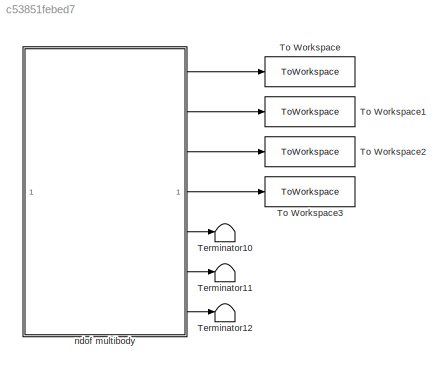
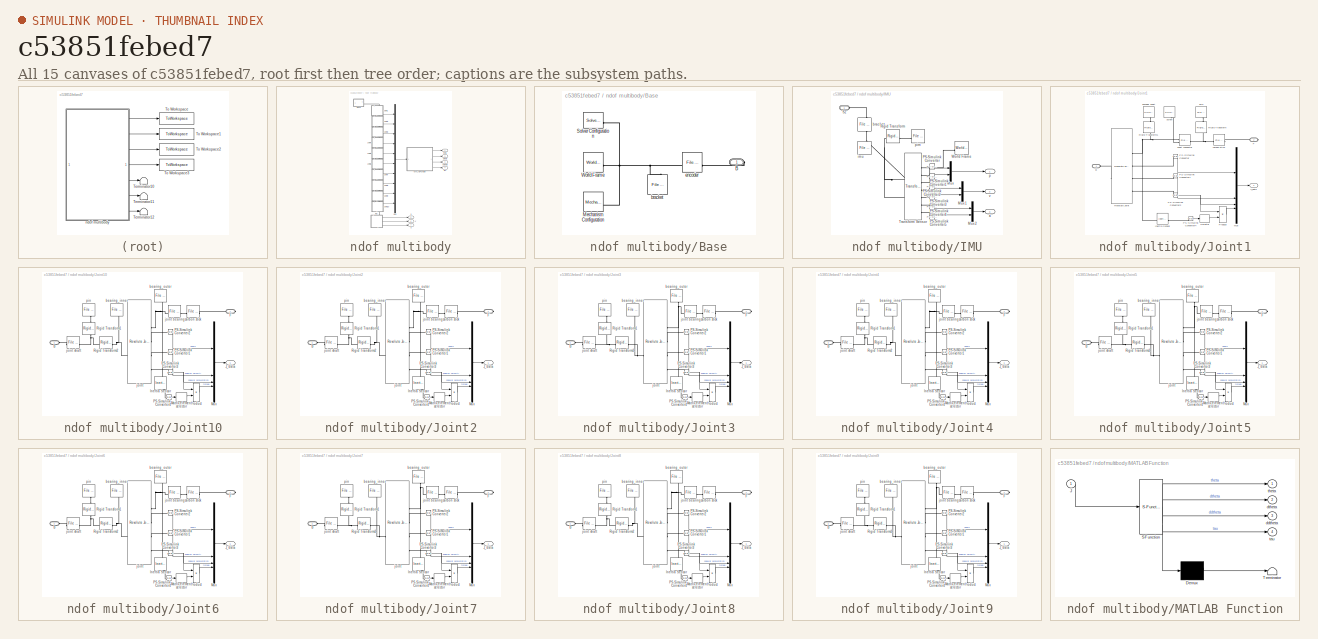
[diagram: thumbnail index - all 15 canvases of the model, root first then tree order]
MODEL slx_c53851febed7
KIND model
CONFIG AbsTol = 1e-3
CONFIG EnableMultiTasking = on
CONFIG FixedStep = auto
CONFIG MaxStep = 1/120
CONFIG MinStep = auto
CONFIG RelTol = 1e-3
CONFIG SampleTimeConstraint = Unconstrained
CONFIG SolverName = VariableStepAuto
CONFIG StartTime = 0.0
CONFIG StopTime = 10.0
WORKSPACE source: mxarray member
WORKSPACE multidof_model_spesession: sldodialogs.data.SessionData (value not decoded)
WORKSPACE multidof_model_spesession_inits: sldodialogs.data.SessionData (value not decoded)
BLOCK [Terminator] Terminator10
BLOCK [Terminator] Terminator11
BLOCK [Terminator] Terminator12
BLOCK [ToWorkspace] To Workspace
  FixptAsFi = on
  MaxDataPoints = inf
  SampleTime = 0.01
  VariableName = th_sim
BLOCK [ToWorkspace] To Workspace1
  FixptAsFi = on
  MaxDataPoints = inf
  SampleTime = 0.01
  VariableName = dth_sim
BLOCK [ToWorkspace] To Workspace2
  FixptAsFi = on
  MaxDataPoints = inf
  SampleTime = 0.01
  VariableName = ddth_sim
BLOCK [ToWorkspace] To Workspace3
  FixptAsFi = on
  MaxDataPoints = inf
  SampleTime = 0.01
  VariableName = tau_sim
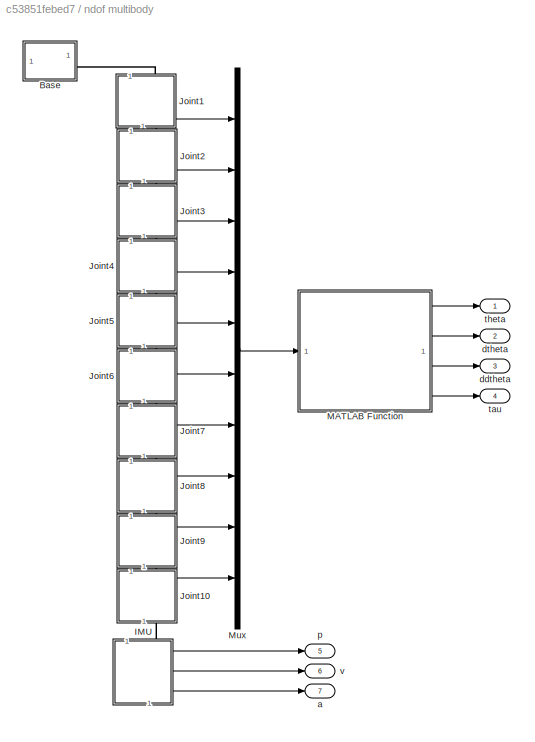
BLOCK [SubSystem] ndof multibody
BLOCK [SubSystem] ndof multibody/Base
BLOCK [PMIOPort] ndof multibody/Base/B
  Side = Right
BLOCK [Reference] ndof multibody/Base/Mechanism Configuration  REF=sm_lib/Utilities/Mechanism
Configuration
  SourceBlock = sm_lib/Utilities/Mechanism\nConfiguration
  SourceType = Mechanism\nConfiguration
BLOCK [Reference] ndof multibody/Base/Solver Configuration  REF=nesl_utility/Solver
Configuration
  SourceBlock = nesl_utility/Solver\nConfiguration
  SourceType = Solver\nConfiguration
BLOCK [Reference] ndof multibody/Base/World Frame  REF=sm_lib/Frames and
Transforms/World Frame
  SourceBlock = sm_lib/Frames and\nTransforms/World Frame
  SourceType = World Frame
BLOCK [Reference] ndof multibody/Base/bracket  REF=sm_lib/Body Elements/File Solid
  SourceBlock = sm_lib/Body Elements/File Solid
  SourceType = File Solid
BLOCK [Reference] ndof multibody/Base/encoder  REF=sm_lib/Body Elements/File Solid
  SourceBlock = sm_lib/Body Elements/File Solid
  SourceType = File Solid
BLOCK [SubSystem] ndof multibody/IMU
  NameLocation = left
  PortSchema = {"entries":[{"content":{"sides":[{"content":{"connectorIds":["LConn1"]},"type":"ConnectorPlacement.EquallySpacedRectSide","uuid":"e53e4473-ec9e-4a7f-8a70-532d57d23812"},{"content":{"side":"RIGHT"},"type":"ConnectorPlacement.EquallySpacedRectSide","uuid":"3b013098-414b-4bbe-8fb9-8feaf218f2f2"},{"content":{"side":"TOP"},"type":"ConnectorPlacement.EquallySpacedRectSide","uuid":"7a3e6378-27ed-48b3-ae8...<+365ch>
BLOCK [Mux] ndof multibody/IMU/Mux
  DisplayOption = bar
  Inputs = 2
BLOCK [Mux] ndof multibody/IMU/Mux1
  DisplayOption = bar
  Inputs = 2
BLOCK [Mux] ndof multibody/IMU/Mux2
  DisplayOption = bar
  Inputs = 2
BLOCK [Reference] ndof multibody/IMU/PS-Simulink Converter  REF=nesl_utility/PS-Simulink
Converter
  SourceBlock = nesl_utility/PS-Simulink\nConverter
  SourceType = PS-Simulink\nConverter
BLOCK [Reference] ndof multibody/IMU/PS-Simulink Converter1  REF=nesl_utility/PS-Simulink
Converter
  SourceBlock = nesl_utility/PS-Simulink\nConverter
  SourceType = PS-Simulink\nConverter
BLOCK [Reference] ndof multibody/IMU/PS-Simulink Converter2  REF=nesl_utility/PS-Simulink
Converter
  SourceBlock = nesl_utility/PS-Simulink\nConverter
  SourceType = PS-Simulink\nConverter
BLOCK [Reference] ndof multibody/IMU/PS-Simulink Converter3  REF=nesl_utility/PS-Simulink
Converter
  SourceBlock = nesl_utility/PS-Simulink\nConverter
  SourceType = PS-Simulink\nConverter
BLOCK [Reference] ndof multibody/IMU/PS-Simulink Converter4  REF=nesl_utility/PS-Simulink
Converter
  SourceBlock = nesl_utility/PS-Simulink\nConverter
  SourceType = PS-Simulink\nConverter
BLOCK [Reference] ndof multibody/IMU/PS-Simulink Converter5  REF=nesl_utility/PS-Simulink
Converter
  SourceBlock = nesl_utility/PS-Simulink\nConverter
  SourceType = PS-Simulink\nConverter
BLOCK [Reference] ndof multibody/IMU/Rigid Transform  REF=sm_lib/Frames and
Transforms/Rigid
Transform
  SourceBlock = sm_lib/Frames and\nTransforms/Rigid\nTransform
  SourceType = Rigid\nTransform
BLOCK [PMIOPort] ndof multibody/IMU/S2
  Side = Left
BLOCK [Reference] ndof multibody/IMU/Transform Sensor  REF=sm_lib/Frames and
Transforms/Transform
Sensor
  SourceBlock = sm_lib/Frames and\nTransforms/Transform\nSensor
  SourceType = Transform\nSensor
BLOCK [Reference] ndof multibody/IMU/World Frame  REF=sm_lib/Frames and
Transforms/World Frame
  NameLocation = top
  SourceBlock = sm_lib/Frames and\nTransforms/World Frame
  SourceType = World Frame
BLOCK [Outport] ndof multibody/IMU/a
  Port = 3
BLOCK [Reference] ndof multibody/IMU/bracket  REF=sm_lib/Body Elements/File Solid
  NameLocation = left
  SourceBlock = sm_lib/Body Elements/File Solid
  SourceType = File Solid
BLOCK [Reference] ndof multibody/IMU/imu  REF=sm_lib/Body Elements/File Solid
  NameLocation = left
  SourceBlock = sm_lib/Body Elements/File Solid
  SourceType = File Solid
BLOCK [Outport] ndof multibody/IMU/p
BLOCK [Reference] ndof multibody/IMU/pim  REF=sm_lib/Body Elements/File Solid
  NameLocation = top
  SourceBlock = sm_lib/Body Elements/File Solid
  SourceType = File Solid
BLOCK [Outport] ndof multibody/IMU/v
  Port = 2
BLOCK [SubSystem] ndof multibody/Joint1
  NameLocation = left
  PortSchema = {"entries":[{"content":{"sides":[{"content":{"connectorIds":["LConn1"]},"type":"ConnectorPlacement.EquallySpacedRectSide","uuid":"0ab43a43-e712-4ae9-a1eb-2f86efe047ce"},{"content":{"connectorIds":["RConn1"],"side":"RIGHT"},"type":"ConnectorPlacement.EquallySpacedRectSide","uuid":"86f5df9d-c84c-4bff-98c8-eea517c464b9"},{"content":{"side":"TOP"},"type":"ConnectorPlacement.EquallySpacedRectSide","uui...<+377ch>  <repeated x10 — deduplicated; at blocks: Joint1, Joint10, Joint2, Joint3, Joint4, Joint5, Joint6, Joint7, Joint8, Joint9>
BLOCK [PMIOPort] ndof multibody/Joint1/B
  Side = Left
BLOCK [PMIOPort] ndof multibody/Joint1/F
  Port = 2
  Side = Right
BLOCK [Reference] ndof multibody/Joint1/Inertia Sensor  REF=sm_lib/Body Elements/Inertia Sensor
  SourceBlock = sm_lib/Body Elements/Inertia Sensor
  SourceType = Inertia Sensor
BLOCK [Outport] ndof multibody/Joint1/J_data
BLOCK [Mux] ndof multibody/Joint1/Mux
  DisplayOption = bar
BLOCK [Reference] ndof multibody/Joint1/PS-Simulink Converter  REF=nesl_utility/PS-Simulink
Converter
  SourceBlock = nesl_utility/PS-Simulink\nConverter
  SourceType = PS-Simulink\nConverter
BLOCK [Reference] ndof multibody/Joint1/PS-Simulink Converter1  REF=nesl_utility/PS-Simulink
Converter
  SourceBlock = nesl_utility/PS-Simulink\nConverter
  SourceType = PS-Simulink\nConverter
BLOCK [Reference] ndof multibody/Joint1/PS-Simulink Converter2  REF=nesl_utility/PS-Simulink
Converter
  SourceBlock = nesl_utility/PS-Simulink\nConverter
  SourceType = PS-Simulink\nConverter
BLOCK [Reference] ndof multibody/Joint1/PS-Simulink Converter4  REF=nesl_utility/PS-Simulink
Converter
  SourceBlock = nesl_utility/PS-Simulink\nConverter
  SourceType = PS-Simulink\nConverter
BLOCK [Product] ndof multibody/Joint1/Product
BLOCK [Reference] ndof multibody/Joint1/Revolute Joint  REF=sm_lib/Joints/Revolute Joint
  SourceBlock = sm_lib/Joints/Revolute Joint
  SourceType = Revolute Joint
BLOCK [Reference] ndof multibody/Joint1/Rigid Transform  REF=sm_lib/Frames and
Transforms/Rigid
Transform
  NameLocation = right
  SourceBlock = sm_lib/Frames and\nTransforms/Rigid\nTransform
  SourceType = Rigid\nTransform
BLOCK [Reference] ndof multibody/Joint1/Rigid Transform1  REF=sm_lib/Frames and
Transforms/Rigid
Transform
  NameLocation = left
  SourceBlock = sm_lib/Frames and\nTransforms/Rigid\nTransform
  SourceType = Rigid\nTransform
BLOCK [Selector] ndof multibody/Joint1/Selector
  IndexOptions = Index vector (dialog),Index vector (dialog)
  Indices = 3,3
  InputPortWidth = 3
  NumberOfDimensions = 2
  OutputSizes = 1,1
BLOCK [Reference] ndof multibody/Joint1/carbon stick  REF=sm_lib/Body Elements/File Solid
  SourceBlock = sm_lib/Body Elements/File Solid
  SourceType = File Solid
BLOCK [Reference] ndof multibody/Joint1/encoder shaft  REF=sm_lib/Body Elements/Cylindrical Solid
  NameLocation = top
  SourceBlock = sm_lib/Body Elements/Cylindrical Solid
  SourceType = Cylindrical Solid
BLOCK [Reference] ndof multibody/Joint1/pim  REF=sm_lib/Body Elements/File Solid
  NameLocation = left
  SourceBlock = sm_lib/Body Elements/File Solid
  SourceType = File Solid
BLOCK [Reference] ndof multibody/Joint1/screw  REF=sm_lib/Body Elements/Cylindrical Solid
  NameLocation = top
  SourceBlock = sm_lib/Body Elements/Cylindrical Solid
  SourceType = Cylindrical Solid
BLOCK [Reference] ndof multibody/Joint1/shaft connector  REF=sm_lib/Body Elements/File Solid
  SourceBlock = sm_lib/Body Elements/File Solid
  SourceType = File Solid
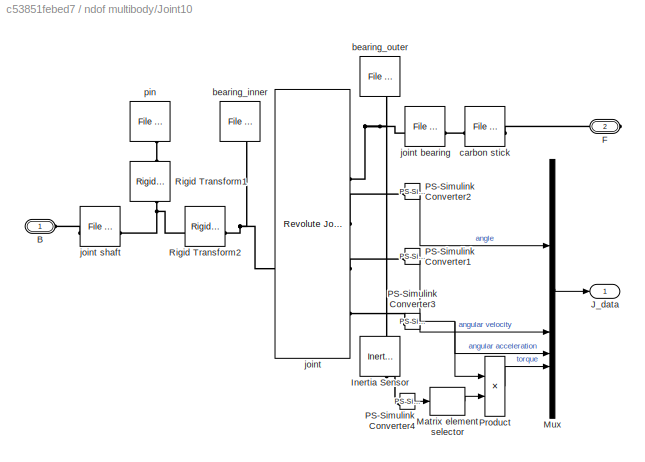
BLOCK [SubSystem] ndof multibody/Joint10
  NameLocation = left
BLOCK [PMIOPort] ndof multibody/Joint10/B
  Side = Left
BLOCK [PMIOPort] ndof multibody/Joint10/F
  Port = 2
  Side = Right
BLOCK [Reference] ndof multibody/Joint10/Inertia Sensor  REF=sm_lib/Body Elements/Inertia Sensor
  NameLocation = right
  SourceBlock = sm_lib/Body Elements/Inertia Sensor
  SourceType = Inertia Sensor
BLOCK [Outport] ndof multibody/Joint10/J_data
BLOCK [Selector] ndof multibody/Joint10/Matrix element selector
  IndexOptions = Index vector (dialog),Index vector (dialog)
  Indices = 3,3
  InputPortWidth = 3
  NumberOfDimensions = 2
  OutputSizes = 1,1
BLOCK [Mux] ndof multibody/Joint10/Mux
  DisplayOption = bar
BLOCK [Reference] ndof multibody/Joint10/PS-Simulink Converter1  REF=nesl_utility/PS-Simulink
Converter
  SourceBlock = nesl_utility/PS-Simulink\nConverter
  SourceType = PS-Simulink\nConverter
BLOCK [Reference] ndof multibody/Joint10/PS-Simulink Converter2  REF=nesl_utility/PS-Simulink
Converter
  SourceBlock = nesl_utility/PS-Simulink\nConverter
  SourceType = PS-Simulink\nConverter
BLOCK [Reference] ndof multibody/Joint10/PS-Simulink Converter3  REF=nesl_utility/PS-Simulink
Converter
  SourceBlock = nesl_utility/PS-Simulink\nConverter
  SourceType = PS-Simulink\nConverter
BLOCK [Reference] ndof multibody/Joint10/PS-Simulink Converter4  REF=nesl_utility/PS-Simulink
Converter
  SourceBlock = nesl_utility/PS-Simulink\nConverter
  SourceType = PS-Simulink\nConverter
BLOCK [Product] ndof multibody/Joint10/Product
BLOCK [Reference] ndof multibody/Joint10/Rigid Transform1  REF=sm_lib/Frames and
Transforms/Rigid
Transform
  NameLocation = right
  SourceBlock = sm_lib/Frames and\nTransforms/Rigid\nTransform
  SourceType = Rigid\nTransform
BLOCK [Reference] ndof multibody/Joint10/Rigid Transform2  REF=sm_lib/Frames and
Transforms/Rigid
Transform
  SourceBlock = sm_lib/Frames and\nTransforms/Rigid\nTransform
  SourceType = Rigid\nTransform
BLOCK [Reference] ndof multibody/Joint10/bearing_inner  REF=sm_lib/Body Elements/File Solid
  NameLocation = top
  SourceBlock = sm_lib/Body Elements/File Solid
  SourceType = File Solid
BLOCK [Reference] ndof multibody/Joint10/bearing_outer  REF=sm_lib/Body Elements/File Solid
  NameLocation = right
  SourceBlock = sm_lib/Body Elements/File Solid
  SourceType = File Solid
BLOCK [Reference] ndof multibody/Joint10/carbon stick  REF=sm_lib/Body Elements/File Solid
  SourceBlock = sm_lib/Body Elements/File Solid
  SourceType = File Solid
BLOCK [Reference] ndof multibody/Joint10/joint  REF=sm_lib/Joints/Revolute Joint
  SourceBlock = sm_lib/Joints/Revolute Joint
  SourceType = Revolute Joint
BLOCK [Reference] ndof multibody/Joint10/joint bearing  REF=sm_lib/Body Elements/File Solid
  SourceBlock = sm_lib/Body Elements/File Solid
  SourceType = File Solid
BLOCK [Reference] ndof multibody/Joint10/joint shaft  REF=sm_lib/Body Elements/File Solid
  SourceBlock = sm_lib/Body Elements/File Solid
  SourceType = File Solid
BLOCK [Reference] ndof multibody/Joint10/pin  REF=sm_lib/Body Elements/File Solid
  NameLocation = top
  SourceBlock = sm_lib/Body Elements/File Solid
  SourceType = File Solid
BLOCK [SubSystem] ndof multibody/Joint2
  NameLocation = left
BLOCK [PMIOPort] ndof multibody/Joint2/B
  Side = Left
BLOCK [PMIOPort] ndof multibody/Joint2/F
  Port = 2
  Side = Right
BLOCK [Reference] ndof multibody/Joint2/Inertia Sensor  REF=sm_lib/Body Elements/Inertia Sensor
  NameLocation = right
  SourceBlock = sm_lib/Body Elements/Inertia Sensor
  SourceType = Inertia Sensor
BLOCK [Outport] ndof multibody/Joint2/J_data
BLOCK [Selector] ndof multibody/Joint2/Matrix element selector
  IndexOptions = Index vector (dialog),Index vector (dialog)
  Indices = 3,3
  InputPortWidth = 3
  NumberOfDimensions = 2
  OutputSizes = 1,1
BLOCK [Mux] ndof multibody/Joint2/Mux
  DisplayOption = bar
BLOCK [Reference] ndof multibody/Joint2/PS-Simulink Converter1  REF=nesl_utility/PS-Simulink
Converter
  SourceBlock = nesl_utility/PS-Simulink\nConverter
  SourceType = PS-Simulink\nConverter
BLOCK [Reference] ndof multibody/Joint2/PS-Simulink Converter2  REF=nesl_utility/PS-Simulink
Converter
  SourceBlock = nesl_utility/PS-Simulink\nConverter
  SourceType = PS-Simulink\nConverter
BLOCK [Reference] ndof multibody/Joint2/PS-Simulink Converter3  REF=nesl_utility/PS-Simulink
Converter
  SourceBlock = nesl_utility/PS-Simulink\nConverter
  SourceType = PS-Simulink\nConverter
BLOCK [Reference] ndof multibody/Joint2/PS-Simulink Converter4  REF=nesl_utility/PS-Simulink
Converter
  SourceBlock = nesl_utility/PS-Simulink\nConverter
  SourceType = PS-Simulink\nConverter
BLOCK [Product] ndof multibody/Joint2/Product
BLOCK [Reference] ndof multibody/Joint2/Rigid Transform1  REF=sm_lib/Frames and
Transforms/Rigid
Transform
  NameLocation = right
  SourceBlock = sm_lib/Frames and\nTransforms/Rigid\nTransform
  SourceType = Rigid\nTransform
BLOCK [Reference] ndof multibody/Joint2/Rigid Transform2  REF=sm_lib/Frames and
Transforms/Rigid
Transform
  SourceBlock = sm_lib/Frames and\nTransforms/Rigid\nTransform
  SourceType = Rigid\nTransform
BLOCK [Reference] ndof multibody/Joint2/bearing_inner  REF=sm_lib/Body Elements/File Solid
  NameLocation = top
  SourceBlock = sm_lib/Body Elements/File Solid
  SourceType = File Solid
BLOCK [Reference] ndof multibody/Joint2/bearing_outer  REF=sm_lib/Body Elements/File Solid
  NameLocation = right
  SourceBlock = sm_lib/Body Elements/File Solid
  SourceType = File Solid
BLOCK [Reference] ndof multibody/Joint2/carbon stick  REF=sm_lib/Body Elements/File Solid
  SourceBlock = sm_lib/Body Elements/File Solid
  SourceType = File Solid
BLOCK [Reference] ndof multibody/Joint2/joint  REF=sm_lib/Joints/Revolute Joint
  SourceBlock = sm_lib/Joints/Revolute Joint
  SourceType = Revolute Joint
BLOCK [Reference] ndof multibody/Joint2/joint bearing  REF=sm_lib/Body Elements/File Solid
  SourceBlock = sm_lib/Body Elements/File Solid
  SourceType = File Solid
BLOCK [Reference] ndof multibody/Joint2/joint shaft  REF=sm_lib/Body Elements/File Solid
  SourceBlock = sm_lib/Body Elements/File Solid
  SourceType = File Solid
BLOCK [Reference] ndof multibody/Joint2/pin  REF=sm_lib/Body Elements/File Solid
  NameLocation = top
  SourceBlock = sm_lib/Body Elements/File Solid
  SourceType = File Solid
BLOCK [SubSystem] ndof multibody/Joint3
  NameLocation = left
BLOCK [PMIOPort] ndof multibody/Joint3/B
  Side = Left
BLOCK [PMIOPort] ndof multibody/Joint3/F
  Port = 2
  Side = Right
BLOCK [Reference] ndof multibody/Joint3/Inertia Sensor  REF=sm_lib/Body Elements/Inertia Sensor
  NameLocation = right
  SourceBlock = sm_lib/Body Elements/Inertia Sensor
  SourceType = Inertia Sensor
BLOCK [Outport] ndof multibody/Joint3/J_data
BLOCK [Selector] ndof multibody/Joint3/Matrix element selector
  IndexOptions = Index vector (dialog),Index vector (dialog)
  Indices = 3,3
  InputPortWidth = 3
  NumberOfDimensions = 2
  OutputSizes = 1,1
BLOCK [Mux] ndof multibody/Joint3/Mux
  DisplayOption = bar
BLOCK [Reference] ndof multibody/Joint3/PS-Simulink Converter1  REF=nesl_utility/PS-Simulink
Converter
  SourceBlock = nesl_utility/PS-Simulink\nConverter
  SourceType = PS-Simulink\nConverter
BLOCK [Reference] ndof multibody/Joint3/PS-Simulink Converter2  REF=nesl_utility/PS-Simulink
Converter
  SourceBlock = nesl_utility/PS-Simulink\nConverter
  SourceType = PS-Simulink\nConverter
BLOCK [Reference] ndof multibody/Joint3/PS-Simulink Converter3  REF=nesl_utility/PS-Simulink
Converter
  SourceBlock = nesl_utility/PS-Simulink\nConverter
  SourceType = PS-Simulink\nConverter
BLOCK [Reference] ndof multibody/Joint3/PS-Simulink Converter4  REF=nesl_utility/PS-Simulink
Converter
  SourceBlock = nesl_utility/PS-Simulink\nConverter
  SourceType = PS-Simulink\nConverter
BLOCK [Product] ndof multibody/Joint3/Product
BLOCK [Reference] ndof multibody/Joint3/Rigid Transform1  REF=sm_lib/Frames and
Transforms/Rigid
Transform
  NameLocation = right
  SourceBlock = sm_lib/Frames and\nTransforms/Rigid\nTransform
  SourceType = Rigid\nTransform
BLOCK [Reference] ndof multibody/Joint3/Rigid Transform2  REF=sm_lib/Frames and
Transforms/Rigid
Transform
  SourceBlock = sm_lib/Frames and\nTransforms/Rigid\nTransform
  SourceType = Rigid\nTransform
BLOCK [Reference] ndof multibody/Joint3/bearing_inner  REF=sm_lib/Body Elements/File Solid
  NameLocation = top
  SourceBlock = sm_lib/Body Elements/File Solid
  SourceType = File Solid
BLOCK [Reference] ndof multibody/Joint3/bearing_outer  REF=sm_lib/Body Elements/File Solid
  NameLocation = right
  SourceBlock = sm_lib/Body Elements/File Solid
  SourceType = File Solid
BLOCK [Reference] ndof multibody/Joint3/carbon stick  REF=sm_lib/Body Elements/File Solid
  SourceBlock = sm_lib/Body Elements/File Solid
  SourceType = File Solid
BLOCK [Reference] ndof multibody/Joint3/joint  REF=sm_lib/Joints/Revolute Joint
  SourceBlock = sm_lib/Joints/Revolute Joint
  SourceType = Revolute Joint
BLOCK [Reference] ndof multibody/Joint3/joint bearing  REF=sm_lib/Body Elements/File Solid
  SourceBlock = sm_lib/Body Elements/File Solid
  SourceType = File Solid
BLOCK [Reference] ndof multibody/Joint3/joint shaft  REF=sm_lib/Body Elements/File Solid
  SourceBlock = sm_lib/Body Elements/File Solid
  SourceType = File Solid
BLOCK [Reference] ndof multibody/Joint3/pin  REF=sm_lib/Body Elements/File Solid
  NameLocation = top
  SourceBlock = sm_lib/Body Elements/File Solid
  SourceType = File Solid
BLOCK [SubSystem] ndof multibody/Joint4
  NameLocation = left
BLOCK [PMIOPort] ndof multibody/Joint4/B
  Side = Left
BLOCK [PMIOPort] ndof multibody/Joint4/F
  Port = 2
  Side = Right
BLOCK [Reference] ndof multibody/Joint4/Inertia Sensor  REF=sm_lib/Body Elements/Inertia Sensor
  NameLocation = right
  SourceBlock = sm_lib/Body Elements/Inertia Sensor
  SourceType = Inertia Sensor
BLOCK [Outport] ndof multibody/Joint4/J_data
BLOCK [Selector] ndof multibody/Joint4/Matrix element selector
  IndexOptions = Index vector (dialog),Index vector (dialog)
  Indices = 3,3
  InputPortWidth = 3
  NumberOfDimensions = 2
  OutputSizes = 1,1
BLOCK [Mux] ndof multibody/Joint4/Mux
  DisplayOption = bar
BLOCK [Reference] ndof multibody/Joint4/PS-Simulink Converter1  REF=nesl_utility/PS-Simulink
Converter
  SourceBlock = nesl_utility/PS-Simulink\nConverter
  SourceType = PS-Simulink\nConverter
BLOCK [Reference] ndof multibody/Joint4/PS-Simulink Converter2  REF=nesl_utility/PS-Simulink
Converter
  SourceBlock = nesl_utility/PS-Simulink\nConverter
  SourceType = PS-Simulink\nConverter
BLOCK [Reference] ndof multibody/Joint4/PS-Simulink Converter3  REF=nesl_utility/PS-Simulink
Converter
  SourceBlock = nesl_utility/PS-Simulink\nConverter
  SourceType = PS-Simulink\nConverter
BLOCK [Reference] ndof multibody/Joint4/PS-Simulink Converter4  REF=nesl_utility/PS-Simulink
Converter
  SourceBlock = nesl_utility/PS-Simulink\nConverter
  SourceType = PS-Simulink\nConverter
BLOCK [Product] ndof multibody/Joint4/Product
BLOCK [Reference] ndof multibody/Joint4/Rigid Transform1  REF=sm_lib/Frames and
Transforms/Rigid
Transform
  NameLocation = right
  SourceBlock = sm_lib/Frames and\nTransforms/Rigid\nTransform
  SourceType = Rigid\nTransform
BLOCK [Reference] ndof multibody/Joint4/Rigid Transform2  REF=sm_lib/Frames and
Transforms/Rigid
Transform
  SourceBlock = sm_lib/Frames and\nTransforms/Rigid\nTransform
  SourceType = Rigid\nTransform
BLOCK [Reference] ndof multibody/Joint4/bearing_inner  REF=sm_lib/Body Elements/File Solid
  NameLocation = top
  SourceBlock = sm_lib/Body Elements/File Solid
  SourceType = File Solid
BLOCK [Reference] ndof multibody/Joint4/bearing_outer  REF=sm_lib/Body Elements/File Solid
  NameLocation = right
  SourceBlock = sm_lib/Body Elements/File Solid
  SourceType = File Solid
BLOCK [Reference] ndof multibody/Joint4/carbon stick  REF=sm_lib/Body Elements/File Solid
  SourceBlock = sm_lib/Body Elements/File Solid
  SourceType = File Solid
BLOCK [Reference] ndof multibody/Joint4/joint  REF=sm_lib/Joints/Revolute Joint
  SourceBlock = sm_lib/Joints/Revolute Joint
  SourceType = Revolute Joint
BLOCK [Reference] ndof multibody/Joint4/joint bearing  REF=sm_lib/Body Elements/File Solid
  SourceBlock = sm_lib/Body Elements/File Solid
  SourceType = File Solid
BLOCK [Reference] ndof multibody/Joint4/joint shaft  REF=sm_lib/Body Elements/File Solid
  SourceBlock = sm_lib/Body Elements/File Solid
  SourceType = File Solid
BLOCK [Reference] ndof multibody/Joint4/pin  REF=sm_lib/Body Elements/File Solid
  NameLocation = top
  SourceBlock = sm_lib/Body Elements/File Solid
  SourceType = File Solid
BLOCK [SubSystem] ndof multibody/Joint5
  NameLocation = left
BLOCK [PMIOPort] ndof multibody/Joint5/B
  Side = Left
BLOCK [PMIOPort] ndof multibody/Joint5/F
  Port = 2
  Side = Right
BLOCK [Reference] ndof multibody/Joint5/Inertia Sensor  REF=sm_lib/Body Elements/Inertia Sensor
  NameLocation = right
  SourceBlock = sm_lib/Body Elements/Inertia Sensor
  SourceType = Inertia Sensor
BLOCK [Outport] ndof multibody/Joint5/J_data
BLOCK [Selector] ndof multibody/Joint5/Matrix element selector
  IndexOptions = Index vector (dialog),Index vector (dialog)
  Indices = 3,3
  InputPortWidth = 3
  NumberOfDimensions = 2
  OutputSizes = 1,1
BLOCK [Mux] ndof multibody/Joint5/Mux
  DisplayOption = bar
BLOCK [Reference] ndof multibody/Joint5/PS-Simulink Converter1  REF=nesl_utility/PS-Simulink
Converter
  SourceBlock = nesl_utility/PS-Simulink\nConverter
  SourceType = PS-Simulink\nConverter
BLOCK [Reference] ndof multibody/Joint5/PS-Simulink Converter2  REF=nesl_utility/PS-Simulink
Converter
  SourceBlock = nesl_utility/PS-Simulink\nConverter
  SourceType = PS-Simulink\nConverter
BLOCK [Reference] ndof multibody/Joint5/PS-Simulink Converter3  REF=nesl_utility/PS-Simulink
Converter
  SourceBlock = nesl_utility/PS-Simulink\nConverter
  SourceType = PS-Simulink\nConverter
BLOCK [Reference] ndof multibody/Joint5/PS-Simulink Converter4  REF=nesl_utility/PS-Simulink
Converter
  SourceBlock = nesl_utility/PS-Simulink\nConverter
  SourceType = PS-Simulink\nConverter
BLOCK [Product] ndof multibody/Joint5/Product
BLOCK [Reference] ndof multibody/Joint5/Rigid Transform1  REF=sm_lib/Frames and
Transforms/Rigid
Transform
  NameLocation = right
  SourceBlock = sm_lib/Frames and\nTransforms/Rigid\nTransform
  SourceType = Rigid\nTransform
BLOCK [Reference] ndof multibody/Joint5/Rigid Transform2  REF=sm_lib/Frames and
Transforms/Rigid
Transform
  SourceBlock = sm_lib/Frames and\nTransforms/Rigid\nTransform
  SourceType = Rigid\nTransform
BLOCK [Reference] ndof multibody/Joint5/bearing_inner  REF=sm_lib/Body Elements/File Solid
  NameLocation = top
  SourceBlock = sm_lib/Body Elements/File Solid
  SourceType = File Solid
BLOCK [Reference] ndof multibody/Joint5/bearing_outer  REF=sm_lib/Body Elements/File Solid
  NameLocation = right
  SourceBlock = sm_lib/Body Elements/File Solid
  SourceType = File Solid
BLOCK [Reference] ndof multibody/Joint5/carbon stick  REF=sm_lib/Body Elements/File Solid
  SourceBlock = sm_lib/Body Elements/File Solid
  SourceType = File Solid
BLOCK [Reference] ndof multibody/Joint5/joint  REF=sm_lib/Joints/Revolute Joint
  SourceBlock = sm_lib/Joints/Revolute Joint
  SourceType = Revolute Joint
BLOCK [Reference] ndof multibody/Joint5/joint bearing  REF=sm_lib/Body Elements/File Solid
  SourceBlock = sm_lib/Body Elements/File Solid
  SourceType = File Solid
BLOCK [Reference] ndof multibody/Joint5/joint shaft  REF=sm_lib/Body Elements/File Solid
  SourceBlock = sm_lib/Body Elements/File Solid
  SourceType = File Solid
BLOCK [Reference] ndof multibody/Joint5/pin  REF=sm_lib/Body Elements/File Solid
  NameLocation = top
  SourceBlock = sm_lib/Body Elements/File Solid
  SourceType = File Solid
BLOCK [SubSystem] ndof multibody/Joint6
  NameLocation = left
BLOCK [PMIOPort] ndof multibody/Joint6/B
  Side = Left
BLOCK [PMIOPort] ndof multibody/Joint6/F
  Port = 2
  Side = Right
BLOCK [Reference] ndof multibody/Joint6/Inertia Sensor  REF=sm_lib/Body Elements/Inertia Sensor
  NameLocation = right
  SourceBlock = sm_lib/Body Elements/Inertia Sensor
  SourceType = Inertia Sensor
BLOCK [Outport] ndof multibody/Joint6/J_data
BLOCK [Selector] ndof multibody/Joint6/Matrix element selector
  IndexOptions = Index vector (dialog),Index vector (dialog)
  Indices = 3,3
  InputPortWidth = 3
  NumberOfDimensions = 2
  OutputSizes = 1,1
BLOCK [Mux] ndof multibody/Joint6/Mux
  DisplayOption = bar
BLOCK [Reference] ndof multibody/Joint6/PS-Simulink Converter1  REF=nesl_utility/PS-Simulink
Converter
  SourceBlock = nesl_utility/PS-Simulink\nConverter
  SourceType = PS-Simulink\nConverter
BLOCK [Reference] ndof multibody/Joint6/PS-Simulink Converter2  REF=nesl_utility/PS-Simulink
Converter
  SourceBlock = nesl_utility/PS-Simulink\nConverter
  SourceType = PS-Simulink\nConverter
BLOCK [Reference] ndof multibody/Joint6/PS-Simulink Converter3  REF=nesl_utility/PS-Simulink
Converter
  SourceBlock = nesl_utility/PS-Simulink\nConverter
  SourceType = PS-Simulink\nConverter
BLOCK [Reference] ndof multibody/Joint6/PS-Simulink Converter4  REF=nesl_utility/PS-Simulink
Converter
  SourceBlock = nesl_utility/PS-Simulink\nConverter
  SourceType = PS-Simulink\nConverter
BLOCK [Product] ndof multibody/Joint6/Product
BLOCK [Reference] ndof multibody/Joint6/Rigid Transform1  REF=sm_lib/Frames and
Transforms/Rigid
Transform
  NameLocation = right
  SourceBlock = sm_lib/Frames and\nTransforms/Rigid\nTransform
  SourceType = Rigid\nTransform
BLOCK [Reference] ndof multibody/Joint6/Rigid Transform2  REF=sm_lib/Frames and
Transforms/Rigid
Transform
  SourceBlock = sm_lib/Frames and\nTransforms/Rigid\nTransform
  SourceType = Rigid\nTransform
BLOCK [Reference] ndof multibody/Joint6/bearing_inner  REF=sm_lib/Body Elements/File Solid
  NameLocation = top
  SourceBlock = sm_lib/Body Elements/File Solid
  SourceType = File Solid
BLOCK [Reference] ndof multibody/Joint6/bearing_outer  REF=sm_lib/Body Elements/File Solid
  NameLocation = right
  SourceBlock = sm_lib/Body Elements/File Solid
  SourceType = File Solid
BLOCK [Reference] ndof multibody/Joint6/carbon stick  REF=sm_lib/Body Elements/File Solid
  SourceBlock = sm_lib/Body Elements/File Solid
  SourceType = File Solid
BLOCK [Reference] ndof multibody/Joint6/joint  REF=sm_lib/Joints/Revolute Joint
  SourceBlock = sm_lib/Joints/Revolute Joint
  SourceType = Revolute Joint
BLOCK [Reference] ndof multibody/Joint6/joint bearing  REF=sm_lib/Body Elements/File Solid
  SourceBlock = sm_lib/Body Elements/File Solid
  SourceType = File Solid
BLOCK [Reference] ndof multibody/Joint6/joint shaft  REF=sm_lib/Body Elements/File Solid
  SourceBlock = sm_lib/Body Elements/File Solid
  SourceType = File Solid
BLOCK [Reference] ndof multibody/Joint6/pin  REF=sm_lib/Body Elements/File Solid
  NameLocation = top
  SourceBlock = sm_lib/Body Elements/File Solid
  SourceType = File Solid
BLOCK [SubSystem] ndof multibody/Joint7
  NameLocation = left
BLOCK [PMIOPort] ndof multibody/Joint7/B
  Side = Left
BLOCK [PMIOPort] ndof multibody/Joint7/F
  Port = 2
  Side = Right
BLOCK [Reference] ndof multibody/Joint7/Inertia Sensor  REF=sm_lib/Body Elements/Inertia Sensor
  NameLocation = right
  SourceBlock = sm_lib/Body Elements/Inertia Sensor
  SourceType = Inertia Sensor
BLOCK [Outport] ndof multibody/Joint7/J_data
BLOCK [Selector] ndof multibody/Joint7/Matrix element selector
  IndexOptions = Index vector (dialog),Index vector (dialog)
  Indices = 3,3
  InputPortWidth = 3
  NumberOfDimensions = 2
  OutputSizes = 1,1
BLOCK [Mux] ndof multibody/Joint7/Mux
  DisplayOption = bar
BLOCK [Reference] ndof multibody/Joint7/PS-Simulink Converter1  REF=nesl_utility/PS-Simulink
Converter
  SourceBlock = nesl_utility/PS-Simulink\nConverter
  SourceType = PS-Simulink\nConverter
BLOCK [Reference] ndof multibody/Joint7/PS-Simulink Converter2  REF=nesl_utility/PS-Simulink
Converter
  SourceBlock = nesl_utility/PS-Simulink\nConverter
  SourceType = PS-Simulink\nConverter
BLOCK [Reference] ndof multibody/Joint7/PS-Simulink Converter3  REF=nesl_utility/PS-Simulink
Converter
  SourceBlock = nesl_utility/PS-Simulink\nConverter
  SourceType = PS-Simulink\nConverter
BLOCK [Reference] ndof multibody/Joint7/PS-Simulink Converter4  REF=nesl_utility/PS-Simulink
Converter
  SourceBlock = nesl_utility/PS-Simulink\nConverter
  SourceType = PS-Simulink\nConverter
BLOCK [Product] ndof multibody/Joint7/Product
BLOCK [Reference] ndof multibody/Joint7/Rigid Transform1  REF=sm_lib/Frames and
Transforms/Rigid
Transform
  NameLocation = right
  SourceBlock = sm_lib/Frames and\nTransforms/Rigid\nTransform
  SourceType = Rigid\nTransform
BLOCK [Reference] ndof multibody/Joint7/Rigid Transform2  REF=sm_lib/Frames and
Transforms/Rigid
Transform
  SourceBlock = sm_lib/Frames and\nTransforms/Rigid\nTransform
  SourceType = Rigid\nTransform
BLOCK [Reference] ndof multibody/Joint7/bearing_inner  REF=sm_lib/Body Elements/File Solid
  NameLocation = top
  SourceBlock = sm_lib/Body Elements/File Solid
  SourceType = File Solid
BLOCK [Reference] ndof multibody/Joint7/bearing_outer  REF=sm_lib/Body Elements/File Solid
  NameLocation = right
  SourceBlock = sm_lib/Body Elements/File Solid
  SourceType = File Solid
BLOCK [Reference] ndof multibody/Joint7/carbon stick  REF=sm_lib/Body Elements/File Solid
  SourceBlock = sm_lib/Body Elements/File Solid
  SourceType = File Solid
BLOCK [Reference] ndof multibody/Joint7/joint  REF=sm_lib/Joints/Revolute Joint
  SourceBlock = sm_lib/Joints/Revolute Joint
  SourceType = Revolute Joint
BLOCK [Reference] ndof multibody/Joint7/joint bearing  REF=sm_lib/Body Elements/File Solid
  SourceBlock = sm_lib/Body Elements/File Solid
  SourceType = File Solid
BLOCK [Reference] ndof multibody/Joint7/joint shaft  REF=sm_lib/Body Elements/File Solid
  SourceBlock = sm_lib/Body Elements/File Solid
  SourceType = File Solid
BLOCK [Reference] ndof multibody/Joint7/pin  REF=sm_lib/Body Elements/File Solid
  NameLocation = top
  SourceBlock = sm_lib/Body Elements/File Solid
  SourceType = File Solid
BLOCK [SubSystem] ndof multibody/Joint8
  NameLocation = left
BLOCK [PMIOPort] ndof multibody/Joint8/B
  Side = Left
BLOCK [PMIOPort] ndof multibody/Joint8/F
  Port = 2
  Side = Right
BLOCK [Reference] ndof multibody/Joint8/Inertia Sensor  REF=sm_lib/Body Elements/Inertia Sensor
  NameLocation = right
  SourceBlock = sm_lib/Body Elements/Inertia Sensor
  SourceType = Inertia Sensor
BLOCK [Outport] ndof multibody/Joint8/J_data
BLOCK [Selector] ndof multibody/Joint8/Matrix element selector
  IndexOptions = Index vector (dialog),Index vector (dialog)
  Indices = 3,3
  InputPortWidth = 3
  NumberOfDimensions = 2
  OutputSizes = 1,1
BLOCK [Mux] ndof multibody/Joint8/Mux
  DisplayOption = bar
BLOCK [Reference] ndof multibody/Joint8/PS-Simulink Converter1  REF=nesl_utility/PS-Simulink
Converter
  SourceBlock = nesl_utility/PS-Simulink\nConverter
  SourceType = PS-Simulink\nConverter
BLOCK [Reference] ndof multibody/Joint8/PS-Simulink Converter2  REF=nesl_utility/PS-Simulink
Converter
  SourceBlock = nesl_utility/PS-Simulink\nConverter
  SourceType = PS-Simulink\nConverter
BLOCK [Reference] ndof multibody/Joint8/PS-Simulink Converter3  REF=nesl_utility/PS-Simulink
Converter
  SourceBlock = nesl_utility/PS-Simulink\nConverter
  SourceType = PS-Simulink\nConverter
BLOCK [Reference] ndof multibody/Joint8/PS-Simulink Converter4  REF=nesl_utility/PS-Simulink
Converter
  SourceBlock = nesl_utility/PS-Simulink\nConverter
  SourceType = PS-Simulink\nConverter
BLOCK [Product] ndof multibody/Joint8/Product
BLOCK [Reference] ndof multibody/Joint8/Rigid Transform1  REF=sm_lib/Frames and
Transforms/Rigid
Transform
  NameLocation = right
  SourceBlock = sm_lib/Frames and\nTransforms/Rigid\nTransform
  SourceType = Rigid\nTransform
BLOCK [Reference] ndof multibody/Joint8/Rigid Transform2  REF=sm_lib/Frames and
Transforms/Rigid
Transform
  SourceBlock = sm_lib/Frames and\nTransforms/Rigid\nTransform
  SourceType = Rigid\nTransform
BLOCK [Reference] ndof multibody/Joint8/bearing_inner  REF=sm_lib/Body Elements/File Solid
  NameLocation = top
  SourceBlock = sm_lib/Body Elements/File Solid
  SourceType = File Solid
BLOCK [Reference] ndof multibody/Joint8/bearing_outer  REF=sm_lib/Body Elements/File Solid
  NameLocation = right
  SourceBlock = sm_lib/Body Elements/File Solid
  SourceType = File Solid
BLOCK [Reference] ndof multibody/Joint8/carbon stick  REF=sm_lib/Body Elements/File Solid
  SourceBlock = sm_lib/Body Elements/File Solid
  SourceType = File Solid
BLOCK [Reference] ndof multibody/Joint8/joint  REF=sm_lib/Joints/Revolute Joint
  SourceBlock = sm_lib/Joints/Revolute Joint
  SourceType = Revolute Joint
BLOCK [Reference] ndof multibody/Joint8/joint bearing  REF=sm_lib/Body Elements/File Solid
  SourceBlock = sm_lib/Body Elements/File Solid
  SourceType = File Solid
BLOCK [Reference] ndof multibody/Joint8/joint shaft  REF=sm_lib/Body Elements/File Solid
  SourceBlock = sm_lib/Body Elements/File Solid
  SourceType = File Solid
BLOCK [Reference] ndof multibody/Joint8/pin  REF=sm_lib/Body Elements/File Solid
  NameLocation = top
  SourceBlock = sm_lib/Body Elements/File Solid
  SourceType = File Solid
BLOCK [SubSystem] ndof multibody/Joint9
  NameLocation = left
BLOCK [PMIOPort] ndof multibody/Joint9/B
  Side = Left
BLOCK [PMIOPort] ndof multibody/Joint9/F
  Port = 2
  Side = Right
BLOCK [Reference] ndof multibody/Joint9/Inertia Sensor  REF=sm_lib/Body Elements/Inertia Sensor
  NameLocation = right
  SourceBlock = sm_lib/Body Elements/Inertia Sensor
  SourceType = Inertia Sensor
BLOCK [Outport] ndof multibody/Joint9/J_data
BLOCK [Selector] ndof multibody/Joint9/Matrix element selector
  IndexOptions = Index vector (dialog),Index vector (dialog)
  Indices = 3,3
  InputPortWidth = 3
  NumberOfDimensions = 2
  OutputSizes = 1,1
BLOCK [Mux] ndof multibody/Joint9/Mux
  DisplayOption = bar
BLOCK [Reference] ndof multibody/Joint9/PS-Simulink Converter1  REF=nesl_utility/PS-Simulink
Converter
  SourceBlock = nesl_utility/PS-Simulink\nConverter
  SourceType = PS-Simulink\nConverter
BLOCK [Reference] ndof multibody/Joint9/PS-Simulink Converter2  REF=nesl_utility/PS-Simulink
Converter
  SourceBlock = nesl_utility/PS-Simulink\nConverter
  SourceType = PS-Simulink\nConverter
BLOCK [Reference] ndof multibody/Joint9/PS-Simulink Converter3  REF=nesl_utility/PS-Simulink
Converter
  SourceBlock = nesl_utility/PS-Simulink\nConverter
  SourceType = PS-Simulink\nConverter
BLOCK [Reference] ndof multibody/Joint9/PS-Simulink Converter4  REF=nesl_utility/PS-Simulink
Converter
  SourceBlock = nesl_utility/PS-Simulink\nConverter
  SourceType = PS-Simulink\nConverter
BLOCK [Product] ndof multibody/Joint9/Product
BLOCK [Reference] ndof multibody/Joint9/Rigid Transform1  REF=sm_lib/Frames and
Transforms/Rigid
Transform
  NameLocation = right
  SourceBlock = sm_lib/Frames and\nTransforms/Rigid\nTransform
  SourceType = Rigid\nTransform
BLOCK [Reference] ndof multibody/Joint9/Rigid Transform2  REF=sm_lib/Frames and
Transforms/Rigid
Transform
  SourceBlock = sm_lib/Frames and\nTransforms/Rigid\nTransform
  SourceType = Rigid\nTransform
BLOCK [Reference] ndof multibody/Joint9/bearing_inner  REF=sm_lib/Body Elements/File Solid
  NameLocation = top
  SourceBlock = sm_lib/Body Elements/File Solid
  SourceType = File Solid
BLOCK [Reference] ndof multibody/Joint9/bearing_outer  REF=sm_lib/Body Elements/File Solid
  NameLocation = right
  SourceBlock = sm_lib/Body Elements/File Solid
  SourceType = File Solid
BLOCK [Reference] ndof multibody/Joint9/carbon stick  REF=sm_lib/Body Elements/File Solid
  SourceBlock = sm_lib/Body Elements/File Solid
  SourceType = File Solid
BLOCK [Reference] ndof multibody/Joint9/joint  REF=sm_lib/Joints/Revolute Joint
  SourceBlock = sm_lib/Joints/Revolute Joint
  SourceType = Revolute Joint
BLOCK [Reference] ndof multibody/Joint9/joint bearing  REF=sm_lib/Body Elements/File Solid
  SourceBlock = sm_lib/Body Elements/File Solid
  SourceType = File Solid
BLOCK [Reference] ndof multibody/Joint9/joint shaft  REF=sm_lib/Body Elements/File Solid
  SourceBlock = sm_lib/Body Elements/File Solid
  SourceType = File Solid
BLOCK [Reference] ndof multibody/Joint9/pin  REF=sm_lib/Body Elements/File Solid
  NameLocation = top
  SourceBlock = sm_lib/Body Elements/File Solid
  SourceType = File Solid
BLOCK [SubSystem] ndof multibody/MATLAB Function
  ErrorFcn = Stateflow.Translate.translate
  PermitHierarchicalResolution = ExplicitOnly
  SFBlockType = MATLAB Function
  TreatAsAtomicUnit = on
BLOCK [Demux] ndof multibody/MATLAB Function/ Demux 
  Outputs = 1
BLOCK [S-Function] ndof multibody/MATLAB Function/ SFunction 
  EnableBusSupport = off
  FunctionName = sf_sfun
  PortCounts = [1 5]
  SFcnIsStateOwnerBlock = off
  SFunctionDeploymentMode = off
  Tag = Stateflow S-Function 1
BLOCK [Terminator] ndof multibody/MATLAB Function/ Terminator 
BLOCK [Inport] ndof multibody/MATLAB Function/J
BLOCK [Outport] ndof multibody/MATLAB Function/ddtheta
  Port = 3
BLOCK [Outport] ndof multibody/MATLAB Function/dtheta
  Port = 2
BLOCK [Outport] ndof multibody/MATLAB Function/tau
  Port = 4
BLOCK [Outport] ndof multibody/MATLAB Function/theta
BLOCK [Mux] ndof multibody/Mux
  DisplayOption = bar
  Inputs = 10
BLOCK [Outport] ndof multibody/a
  NameLocation = right
  Port = 7
BLOCK [Outport] ndof multibody/ddtheta
  NameLocation = right
  Port = 3
BLOCK [Outport] ndof multibody/dtheta
  NameLocation = right
  Port = 2
BLOCK [Outport] ndof multibody/p
  NameLocation = right
  Port = 5
BLOCK [Outport] ndof multibody/tau
  NameLocation = right
  Port = 4
BLOCK [Outport] ndof multibody/theta
  NameLocation = right
BLOCK [Outport] ndof multibody/v
  NameLocation = right
  Port = 6
LINE ndof multibody/IMU/Mux1:1 -> ndof multibody/IMU/v:1
LINE ndof multibody/IMU/Mux2:1 -> ndof multibody/IMU/a:1
LINE ndof multibody/IMU/Mux:1 -> ndof multibody/IMU/p:1
LINE ndof multibody/IMU/PS-Simulink Converter1:1 -> ndof multibody/IMU/Mux:2
LINE ndof multibody/IMU/PS-Simulink Converter2:1 -> ndof multibody/IMU/Mux1:1
LINE ndof multibody/IMU/PS-Simulink Converter3:1 -> ndof multibody/IMU/Mux1:2
LINE ndof multibody/IMU/PS-Simulink Converter4:1 -> ndof multibody/IMU/Mux2:1
LINE ndof multibody/IMU/PS-Simulink Converter5:1 -> ndof multibody/IMU/Mux2:2
LINE ndof multibody/IMU/PS-Simulink Converter:1 -> ndof multibody/IMU/Mux:1
LINE ndof multibody/IMU:1 -> ndof multibody/p:1
LINE ndof multibody/IMU:2 -> ndof multibody/v:1
LINE ndof multibody/IMU:3 -> ndof multibody/a:1
LINE ndof multibody/Joint1/Mux:1 -> ndof multibody/Joint1/J_data:1
LINE ndof multibody/Joint1/PS-Simulink Converter1:1 -> ndof multibody/Joint1/Mux:2
NET ndof multibody/Joint1/PS-Simulink Converter2:1 -> ndof multibody/Joint1/Mux:3, ndof multibody/Joint1/Product:1
LINE ndof multibody/Joint1/PS-Simulink Converter4:1 -> ndof multibody/Joint1/Selector:1
LINE ndof multibody/Joint1/PS-Simulink Converter:1 -> ndof multibody/Joint1/Mux:1
LINE ndof multibody/Joint1/Product:1 -> ndof multibody/Joint1/Mux:4
LINE ndof multibody/Joint1/Selector:1 -> ndof multibody/Joint1/Product:2
LINE ndof multibody/Joint10/Matrix element selector:1 -> ndof multibody/Joint10/Product:2
LINE ndof multibody/Joint10/Mux:1 -> ndof multibody/Joint10/J_data:1
LINE ndof multibody/Joint10/PS-Simulink Converter1:1 -> ndof multibody/Joint10/Mux:2
LINE ndof multibody/Joint10/PS-Simulink Converter2:1 -> ndof multibody/Joint10/Mux:1
NET ndof multibody/Joint10/PS-Simulink Converter3:1 -> ndof multibody/Joint10/Mux:3, ndof multibody/Joint10/Product:1
LINE ndof multibody/Joint10/PS-Simulink Converter4:1 -> ndof multibody/Joint10/Matrix element selector:1
LINE ndof multibody/Joint10/Product:1 -> ndof multibody/Joint10/Mux:4
LINE ndof multibody/Joint10:1 -> ndof multibody/Mux:10
LINE ndof multibody/Joint1:1 -> ndof multibody/Mux:1
LINE ndof multibody/Joint2/Matrix element selector:1 -> ndof multibody/Joint2/Product:2
LINE ndof multibody/Joint2/Mux:1 -> ndof multibody/Joint2/J_data:1
LINE ndof multibody/Joint2/PS-Simulink Converter1:1 -> ndof multibody/Joint2/Mux:2
LINE ndof multibody/Joint2/PS-Simulink Converter2:1 -> ndof multibody/Joint2/Mux:1
NET ndof multibody/Joint2/PS-Simulink Converter3:1 -> ndof multibody/Joint2/Mux:3, ndof multibody/Joint2/Product:1
LINE ndof multibody/Joint2/PS-Simulink Converter4:1 -> ndof multibody/Joint2/Matrix element selector:1
LINE ndof multibody/Joint2/Product:1 -> ndof multibody/Joint2/Mux:4
LINE ndof multibody/Joint2:1 -> ndof multibody/Mux:2
LINE ndof multibody/Joint3/Matrix element selector:1 -> ndof multibody/Joint3/Product:2
LINE ndof multibody/Joint3/Mux:1 -> ndof multibody/Joint3/J_data:1
LINE ndof multibody/Joint3/PS-Simulink Converter1:1 -> ndof multibody/Joint3/Mux:2
LINE ndof multibody/Joint3/PS-Simulink Converter2:1 -> ndof multibody/Joint3/Mux:1
NET ndof multibody/Joint3/PS-Simulink Converter3:1 -> ndof multibody/Joint3/Mux:3, ndof multibody/Joint3/Product:1
LINE ndof multibody/Joint3/PS-Simulink Converter4:1 -> ndof multibody/Joint3/Matrix element selector:1
LINE ndof multibody/Joint3/Product:1 -> ndof multibody/Joint3/Mux:4
LINE ndof multibody/Joint3:1 -> ndof multibody/Mux:3
LINE ndof multibody/Joint4/Matrix element selector:1 -> ndof multibody/Joint4/Product:2
LINE ndof multibody/Joint4/Mux:1 -> ndof multibody/Joint4/J_data:1
LINE ndof multibody/Joint4/PS-Simulink Converter1:1 -> ndof multibody/Joint4/Mux:2
LINE ndof multibody/Joint4/PS-Simulink Converter2:1 -> ndof multibody/Joint4/Mux:1
NET ndof multibody/Joint4/PS-Simulink Converter3:1 -> ndof multibody/Joint4/Mux:3, ndof multibody/Joint4/Product:1
LINE ndof multibody/Joint4/PS-Simulink Converter4:1 -> ndof multibody/Joint4/Matrix element selector:1
LINE ndof multibody/Joint4/Product:1 -> ndof multibody/Joint4/Mux:4
LINE ndof multibody/Joint4:1 -> ndof multibody/Mux:4
LINE ndof multibody/Joint5/Matrix element selector:1 -> ndof multibody/Joint5/Product:2
LINE ndof multibody/Joint5/Mux:1 -> ndof multibody/Joint5/J_data:1
LINE ndof multibody/Joint5/PS-Simulink Converter1:1 -> ndof multibody/Joint5/Mux:2
LINE ndof multibody/Joint5/PS-Simulink Converter2:1 -> ndof multibody/Joint5/Mux:1
NET ndof multibody/Joint5/PS-Simulink Converter3:1 -> ndof multibody/Joint5/Mux:3, ndof multibody/Joint5/Product:1
LINE ndof multibody/Joint5/PS-Simulink Converter4:1 -> ndof multibody/Joint5/Matrix element selector:1
LINE ndof multibody/Joint5/Product:1 -> ndof multibody/Joint5/Mux:4
LINE ndof multibody/Joint5:1 -> ndof multibody/Mux:5
LINE ndof multibody/Joint6/Matrix element selector:1 -> ndof multibody/Joint6/Product:2
LINE ndof multibody/Joint6/Mux:1 -> ndof multibody/Joint6/J_data:1
LINE ndof multibody/Joint6/PS-Simulink Converter1:1 -> ndof multibody/Joint6/Mux:2
LINE ndof multibody/Joint6/PS-Simulink Converter2:1 -> ndof multibody/Joint6/Mux:1
NET ndof multibody/Joint6/PS-Simulink Converter3:1 -> ndof multibody/Joint6/Mux:3, ndof multibody/Joint6/Product:1
LINE ndof multibody/Joint6/PS-Simulink Converter4:1 -> ndof multibody/Joint6/Matrix element selector:1
LINE ndof multibody/Joint6/Product:1 -> ndof multibody/Joint6/Mux:4
LINE ndof multibody/Joint6:1 -> ndof multibody/Mux:6
LINE ndof multibody/Joint7/Matrix element selector:1 -> ndof multibody/Joint7/Product:2
LINE ndof multibody/Joint7/Mux:1 -> ndof multibody/Joint7/J_data:1
LINE ndof multibody/Joint7/PS-Simulink Converter1:1 -> ndof multibody/Joint7/Mux:2
LINE ndof multibody/Joint7/PS-Simulink Converter2:1 -> ndof multibody/Joint7/Mux:1
NET ndof multibody/Joint7/PS-Simulink Converter3:1 -> ndof multibody/Joint7/Mux:3, ndof multibody/Joint7/Product:1
LINE ndof multibody/Joint7/PS-Simulink Converter4:1 -> ndof multibody/Joint7/Matrix element selector:1
LINE ndof multibody/Joint7/Product:1 -> ndof multibody/Joint7/Mux:4
LINE ndof multibody/Joint7:1 -> ndof multibody/Mux:7
LINE ndof multibody/Joint8/Matrix element selector:1 -> ndof multibody/Joint8/Product:2
LINE ndof multibody/Joint8/Mux:1 -> ndof multibody/Joint8/J_data:1
LINE ndof multibody/Joint8/PS-Simulink Converter1:1 -> ndof multibody/Joint8/Mux:2
LINE ndof multibody/Joint8/PS-Simulink Converter2:1 -> ndof multibody/Joint8/Mux:1
NET ndof multibody/Joint8/PS-Simulink Converter3:1 -> ndof multibody/Joint8/Mux:3, ndof multibody/Joint8/Product:1
LINE ndof multibody/Joint8/PS-Simulink Converter4:1 -> ndof multibody/Joint8/Matrix element selector:1
LINE ndof multibody/Joint8/Product:1 -> ndof multibody/Joint8/Mux:4
LINE ndof multibody/Joint8:1 -> ndof multibody/Mux:8
LINE ndof multibody/Joint9/Matrix element selector:1 -> ndof multibody/Joint9/Product:2
LINE ndof multibody/Joint9/Mux:1 -> ndof multibody/Joint9/J_data:1
LINE ndof multibody/Joint9/PS-Simulink Converter1:1 -> ndof multibody/Joint9/Mux:2
LINE ndof multibody/Joint9/PS-Simulink Converter2:1 -> ndof multibody/Joint9/Mux:1
NET ndof multibody/Joint9/PS-Simulink Converter3:1 -> ndof multibody/Joint9/Mux:3, ndof multibody/Joint9/Product:1
LINE ndof multibody/Joint9/PS-Simulink Converter4:1 -> ndof multibody/Joint9/Matrix element selector:1
LINE ndof multibody/Joint9/Product:1 -> ndof multibody/Joint9/Mux:4
LINE ndof multibody/Joint9:1 -> ndof multibody/Mux:9
LINE ndof multibody/MATLAB Function:1 -> ndof multibody/theta:1
LINE ndof multibody/MATLAB Function:2 -> ndof multibody/dtheta:1
LINE ndof multibody/MATLAB Function:3 -> ndof multibody/ddtheta:1
LINE ndof multibody/MATLAB Function:4 -> ndof multibody/tau:1
LINE ndof multibody/Mux:1 -> ndof multibody/MATLAB Function:1
LINE ndof multibody:1 -> To Workspace:1
LINE ndof multibody:2 -> To Workspace1:1
LINE ndof multibody:3 -> To Workspace2:1
LINE ndof multibody:4 -> To Workspace3:1
LINE ndof multibody:5 -> Terminator10:1
LINE ndof multibody:6 -> Terminator11:1
LINE ndof multibody:7 -> Terminator12:1
PLINE ndof multibody/Base/B:RConn1 -- ndof multibody/Base/encoder:RConn1
PNET net1: ndof multibody/Base/Mechanism Configuration:RConn1 -- ndof multibody/Base/Solver Configuration:RConn1 -- ndof multibody/Base/World Frame:RConn1 -- ndof multibody/Base/bracket:LConn1 -- ndof multibody/Base/encoder:LConn1
PLINE ndof multibody/Base:RConn1 -- ndof multibody/Joint1:LConn1
PLINE ndof multibody/IMU/PS-Simulink Converter1:LConn1 -- ndof multibody/IMU/Transform Sensor:RConn3
PLINE ndof multibody/IMU/PS-Simulink Converter2:LConn1 -- ndof multibody/IMU/Transform Sensor:RConn4
PLINE ndof multibody/IMU/PS-Simulink Converter3:LConn1 -- ndof multibody/IMU/Transform Sensor:RConn5
PLINE ndof multibody/IMU/PS-Simulink Converter4:LConn1 -- ndof multibody/IMU/Transform Sensor:RConn6
PLINE ndof multibody/IMU/PS-Simulink Converter5:LConn1 -- ndof multibody/IMU/Transform Sensor:RConn7
PLINE ndof multibody/IMU/PS-Simulink Converter:LConn1 -- ndof multibody/IMU/Transform Sensor:RConn2
PNET net2: ndof multibody/IMU/Rigid Transform:LConn1 -- ndof multibody/IMU/Transform Sensor:LConn1 -- ndof multibody/IMU/bracket:RConn1 -- ndof multibody/IMU/imu:LConn1
PLINE ndof multibody/IMU/Rigid Transform:RConn1 -- ndof multibody/IMU/pim:LConn1
PLINE ndof multibody/IMU/S2:RConn1 -- ndof multibody/IMU/bracket:LConn1
PLINE ndof multibody/IMU/Transform Sensor:RConn1 -- ndof multibody/IMU/World Frame:RConn1
PLINE ndof multibody/IMU:LConn1 -- ndof multibody/Joint10:RConn1
PLINE ndof multibody/Joint1/B:RConn1 -- ndof multibody/Joint1/Revolute Joint:LConn1
PLINE ndof multibody/Joint1/F:RConn1 -- ndof multibody/Joint1/carbon stick:RConn1
PNET net3: ndof multibody/Joint1/Inertia Sensor:LConn1 -- ndof multibody/Joint1/Revolute Joint:RConn1 -- ndof multibody/Joint1/Rigid Transform1:RConn1 -- ndof multibody/Joint1/shaft connector:LConn1
PLINE ndof multibody/Joint1/Inertia Sensor:RConn1 -- ndof multibody/Joint1/PS-Simulink Converter4:LConn1
PLINE ndof multibody/Joint1/PS-Simulink Converter1:LConn1 -- ndof multibody/Joint1/Revolute Joint:RConn3
PLINE ndof multibody/Joint1/PS-Simulink Converter2:LConn1 -- ndof multibody/Joint1/Revolute Joint:RConn4
PLINE ndof multibody/Joint1/PS-Simulink Converter:LConn1 -- ndof multibody/Joint1/Revolute Joint:RConn2
PLINE ndof multibody/Joint1/Rigid Transform1:LConn1 -- ndof multibody/Joint1/encoder shaft:RConn1
PNET net4: ndof multibody/Joint1/Rigid Transform:LConn1 -- ndof multibody/Joint1/carbon stick:LConn1 -- ndof multibody/Joint1/shaft connector:RConn1
PLINE ndof multibody/Joint1/Rigid Transform:RConn1 -- ndof multibody/Joint1/pim:LConn1
PLINE ndof multibody/Joint1/screw:RConn1 -- ndof multibody/Joint1/shaft connector:LConn2
PLINE ndof multibody/Joint10/B:RConn1 -- ndof multibody/Joint10/joint shaft:LConn1
PLINE ndof multibody/Joint10/F:RConn1 -- ndof multibody/Joint10/carbon stick:RConn1
PNET net5: ndof multibody/Joint10/Inertia Sensor:LConn1 -- ndof multibody/Joint10/bearing_outer:LConn1 -- ndof multibody/Joint10/joint bearing:LConn1 -- ndof multibody/Joint10/joint:RConn1
PLINE ndof multibody/Joint10/Inertia Sensor:RConn1 -- ndof multibody/Joint10/PS-Simulink Converter4:LConn1
PLINE ndof multibody/Joint10/PS-Simulink Converter1:LConn1 -- ndof multibody/Joint10/joint:RConn3
PLINE ndof multibody/Joint10/PS-Simulink Converter2:LConn1 -- ndof multibody/Joint10/joint:RConn2
PLINE ndof multibody/Joint10/PS-Simulink Converter3:LConn1 -- ndof multibody/Joint10/joint:RConn4
PNET net6: ndof multibody/Joint10/Rigid Transform1:LConn1 -- ndof multibody/Joint10/Rigid Transform2:LConn1 -- ndof multibody/Joint10/joint shaft:RConn1
PLINE ndof multibody/Joint10/Rigid Transform1:RConn1 -- ndof multibody/Joint10/pin:LConn1
PNET net7: ndof multibody/Joint10/Rigid Transform2:RConn1 -- ndof multibody/Joint10/bearing_inner:LConn1 -- ndof multibody/Joint10/joint:LConn1
PLINE ndof multibody/Joint10/carbon stick:LConn1 -- ndof multibody/Joint10/joint bearing:RConn1
PLINE ndof multibody/Joint10:LConn1 -- ndof multibody/Joint9:RConn1
PLINE ndof multibody/Joint1:RConn1 -- ndof multibody/Joint2:LConn1
PLINE ndof multibody/Joint2/B:RConn1 -- ndof multibody/Joint2/joint shaft:LConn1
PLINE ndof multibody/Joint2/F:RConn1 -- ndof multibody/Joint2/carbon stick:RConn1
PNET net8: ndof multibody/Joint2/Inertia Sensor:LConn1 -- ndof multibody/Joint2/bearing_outer:LConn1 -- ndof multibody/Joint2/joint bearing:LConn1 -- ndof multibody/Joint2/joint:RConn1
PLINE ndof multibody/Joint2/Inertia Sensor:RConn1 -- ndof multibody/Joint2/PS-Simulink Converter4:LConn1
PLINE ndof multibody/Joint2/PS-Simulink Converter1:LConn1 -- ndof multibody/Joint2/joint:RConn3
PLINE ndof multibody/Joint2/PS-Simulink Converter2:LConn1 -- ndof multibody/Joint2/joint:RConn2
PLINE ndof multibody/Joint2/PS-Simulink Converter3:LConn1 -- ndof multibody/Joint2/joint:RConn4
PNET net9: ndof multibody/Joint2/Rigid Transform1:LConn1 -- ndof multibody/Joint2/Rigid Transform2:LConn1 -- ndof multibody/Joint2/joint shaft:RConn1
PLINE ndof multibody/Joint2/Rigid Transform1:RConn1 -- ndof multibody/Joint2/pin:LConn1
PNET net10: ndof multibody/Joint2/Rigid Transform2:RConn1 -- ndof multibody/Joint2/bearing_inner:LConn1 -- ndof multibody/Joint2/joint:LConn1
PLINE ndof multibody/Joint2/carbon stick:LConn1 -- ndof multibody/Joint2/joint bearing:RConn1
PLINE ndof multibody/Joint2:RConn1 -- ndof multibody/Joint3:LConn1
PLINE ndof multibody/Joint3/B:RConn1 -- ndof multibody/Joint3/joint shaft:LConn1
PLINE ndof multibody/Joint3/F:RConn1 -- ndof multibody/Joint3/carbon stick:RConn1
PNET net11: ndof multibody/Joint3/Inertia Sensor:LConn1 -- ndof multibody/Joint3/bearing_outer:LConn1 -- ndof multibody/Joint3/joint bearing:LConn1 -- ndof multibody/Joint3/joint:RConn1
PLINE ndof multibody/Joint3/Inertia Sensor:RConn1 -- ndof multibody/Joint3/PS-Simulink Converter4:LConn1
PLINE ndof multibody/Joint3/PS-Simulink Converter1:LConn1 -- ndof multibody/Joint3/joint:RConn3
PLINE ndof multibody/Joint3/PS-Simulink Converter2:LConn1 -- ndof multibody/Joint3/joint:RConn2
PLINE ndof multibody/Joint3/PS-Simulink Converter3:LConn1 -- ndof multibody/Joint3/joint:RConn4
PNET net12: ndof multibody/Joint3/Rigid Transform1:LConn1 -- ndof multibody/Joint3/Rigid Transform2:LConn1 -- ndof multibody/Joint3/joint shaft:RConn1
PLINE ndof multibody/Joint3/Rigid Transform1:RConn1 -- ndof multibody/Joint3/pin:LConn1
PNET net13: ndof multibody/Joint3/Rigid Transform2:RConn1 -- ndof multibody/Joint3/bearing_inner:LConn1 -- ndof multibody/Joint3/joint:LConn1
PLINE ndof multibody/Joint3/carbon stick:LConn1 -- ndof multibody/Joint3/joint bearing:RConn1
PLINE ndof multibody/Joint3:RConn1 -- ndof multibody/Joint4:LConn1
PLINE ndof multibody/Joint4/B:RConn1 -- ndof multibody/Joint4/joint shaft:LConn1
PLINE ndof multibody/Joint4/F:RConn1 -- ndof multibody/Joint4/carbon stick:RConn1
PNET net14: ndof multibody/Joint4/Inertia Sensor:LConn1 -- ndof multibody/Joint4/bearing_outer:LConn1 -- ndof multibody/Joint4/joint bearing:LConn1 -- ndof multibody/Joint4/joint:RConn1
PLINE ndof multibody/Joint4/Inertia Sensor:RConn1 -- ndof multibody/Joint4/PS-Simulink Converter4:LConn1
PLINE ndof multibody/Joint4/PS-Simulink Converter1:LConn1 -- ndof multibody/Joint4/joint:RConn3
PLINE ndof multibody/Joint4/PS-Simulink Converter2:LConn1 -- ndof multibody/Joint4/joint:RConn2
PLINE ndof multibody/Joint4/PS-Simulink Converter3:LConn1 -- ndof multibody/Joint4/joint:RConn4
PNET net15: ndof multibody/Joint4/Rigid Transform1:LConn1 -- ndof multibody/Joint4/Rigid Transform2:LConn1 -- ndof multibody/Joint4/joint shaft:RConn1
PLINE ndof multibody/Joint4/Rigid Transform1:RConn1 -- ndof multibody/Joint4/pin:LConn1
PNET net16: ndof multibody/Joint4/Rigid Transform2:RConn1 -- ndof multibody/Joint4/bearing_inner:LConn1 -- ndof multibody/Joint4/joint:LConn1
PLINE ndof multibody/Joint4/carbon stick:LConn1 -- ndof multibody/Joint4/joint bearing:RConn1
PLINE ndof multibody/Joint4:RConn1 -- ndof multibody/Joint5:LConn1
PLINE ndof multibody/Joint5/B:RConn1 -- ndof multibody/Joint5/joint shaft:LConn1
PLINE ndof multibody/Joint5/F:RConn1 -- ndof multibody/Joint5/carbon stick:RConn1
PNET net17: ndof multibody/Joint5/Inertia Sensor:LConn1 -- ndof multibody/Joint5/bearing_outer:LConn1 -- ndof multibody/Joint5/joint bearing:LConn1 -- ndof multibody/Joint5/joint:RConn1
PLINE ndof multibody/Joint5/Inertia Sensor:RConn1 -- ndof multibody/Joint5/PS-Simulink Converter4:LConn1
PLINE ndof multibody/Joint5/PS-Simulink Converter1:LConn1 -- ndof multibody/Joint5/joint:RConn3
PLINE ndof multibody/Joint5/PS-Simulink Converter2:LConn1 -- ndof multibody/Joint5/joint:RConn2
PLINE ndof multibody/Joint5/PS-Simulink Converter3:LConn1 -- ndof multibody/Joint5/joint:RConn4
PNET net18: ndof multibody/Joint5/Rigid Transform1:LConn1 -- ndof multibody/Joint5/Rigid Transform2:LConn1 -- ndof multibody/Joint5/joint shaft:RConn1
PLINE ndof multibody/Joint5/Rigid Transform1:RConn1 -- ndof multibody/Joint5/pin:LConn1
PNET net19: ndof multibody/Joint5/Rigid Transform2:RConn1 -- ndof multibody/Joint5/bearing_inner:LConn1 -- ndof multibody/Joint5/joint:LConn1
PLINE ndof multibody/Joint5/carbon stick:LConn1 -- ndof multibody/Joint5/joint bearing:RConn1
PLINE ndof multibody/Joint5:RConn1 -- ndof multibody/Joint6:LConn1
PLINE ndof multibody/Joint6/B:RConn1 -- ndof multibody/Joint6/joint shaft:LConn1
PLINE ndof multibody/Joint6/F:RConn1 -- ndof multibody/Joint6/carbon stick:RConn1
PNET net20: ndof multibody/Joint6/Inertia Sensor:LConn1 -- ndof multibody/Joint6/bearing_outer:LConn1 -- ndof multibody/Joint6/joint bearing:LConn1 -- ndof multibody/Joint6/joint:RConn1
PLINE ndof multibody/Joint6/Inertia Sensor:RConn1 -- ndof multibody/Joint6/PS-Simulink Converter4:LConn1
PLINE ndof multibody/Joint6/PS-Simulink Converter1:LConn1 -- ndof multibody/Joint6/joint:RConn3
PLINE ndof multibody/Joint6/PS-Simulink Converter2:LConn1 -- ndof multibody/Joint6/joint:RConn2
PLINE ndof multibody/Joint6/PS-Simulink Converter3:LConn1 -- ndof multibody/Joint6/joint:RConn4
PNET net21: ndof multibody/Joint6/Rigid Transform1:LConn1 -- ndof multibody/Joint6/Rigid Transform2:LConn1 -- ndof multibody/Joint6/joint shaft:RConn1
PLINE ndof multibody/Joint6/Rigid Transform1:RConn1 -- ndof multibody/Joint6/pin:LConn1
PNET net22: ndof multibody/Joint6/Rigid Transform2:RConn1 -- ndof multibody/Joint6/bearing_inner:LConn1 -- ndof multibody/Joint6/joint:LConn1
PLINE ndof multibody/Joint6/carbon stick:LConn1 -- ndof multibody/Joint6/joint bearing:RConn1
PLINE ndof multibody/Joint6:RConn1 -- ndof multibody/Joint7:LConn1
PLINE ndof multibody/Joint7/B:RConn1 -- ndof multibody/Joint7/joint shaft:LConn1
PLINE ndof multibody/Joint7/F:RConn1 -- ndof multibody/Joint7/carbon stick:RConn1
PNET net23: ndof multibody/Joint7/Inertia Sensor:LConn1 -- ndof multibody/Joint7/bearing_outer:LConn1 -- ndof multibody/Joint7/joint bearing:LConn1 -- ndof multibody/Joint7/joint:RConn1
PLINE ndof multibody/Joint7/Inertia Sensor:RConn1 -- ndof multibody/Joint7/PS-Simulink Converter4:LConn1
PLINE ndof multibody/Joint7/PS-Simulink Converter1:LConn1 -- ndof multibody/Joint7/joint:RConn3
PLINE ndof multibody/Joint7/PS-Simulink Converter2:LConn1 -- ndof multibody/Joint7/joint:RConn2
PLINE ndof multibody/Joint7/PS-Simulink Converter3:LConn1 -- ndof multibody/Joint7/joint:RConn4
PNET net24: ndof multibody/Joint7/Rigid Transform1:LConn1 -- ndof multibody/Joint7/Rigid Transform2:LConn1 -- ndof multibody/Joint7/joint shaft:RConn1
PLINE ndof multibody/Joint7/Rigid Transform1:RConn1 -- ndof multibody/Joint7/pin:LConn1
PNET net25: ndof multibody/Joint7/Rigid Transform2:RConn1 -- ndof multibody/Joint7/bearing_inner:LConn1 -- ndof multibody/Joint7/joint:LConn1
PLINE ndof multibody/Joint7/carbon stick:LConn1 -- ndof multibody/Joint7/joint bearing:RConn1
PLINE ndof multibody/Joint7:RConn1 -- ndof multibody/Joint8:LConn1
PLINE ndof multibody/Joint8/B:RConn1 -- ndof multibody/Joint8/joint shaft:LConn1
PLINE ndof multibody/Joint8/F:RConn1 -- ndof multibody/Joint8/carbon stick:RConn1
PNET net26: ndof multibody/Joint8/Inertia Sensor:LConn1 -- ndof multibody/Joint8/bearing_outer:LConn1 -- ndof multibody/Joint8/joint bearing:LConn1 -- ndof multibody/Joint8/joint:RConn1
PLINE ndof multibody/Joint8/Inertia Sensor:RConn1 -- ndof multibody/Joint8/PS-Simulink Converter4:LConn1
PLINE ndof multibody/Joint8/PS-Simulink Converter1:LConn1 -- ndof multibody/Joint8/joint:RConn3
PLINE ndof multibody/Joint8/PS-Simulink Converter2:LConn1 -- ndof multibody/Joint8/joint:RConn2
PLINE ndof multibody/Joint8/PS-Simulink Converter3:LConn1 -- ndof multibody/Joint8/joint:RConn4
PNET net27: ndof multibody/Joint8/Rigid Transform1:LConn1 -- ndof multibody/Joint8/Rigid Transform2:LConn1 -- ndof multibody/Joint8/joint shaft:RConn1
PLINE ndof multibody/Joint8/Rigid Transform1:RConn1 -- ndof multibody/Joint8/pin:LConn1
PNET net28: ndof multibody/Joint8/Rigid Transform2:RConn1 -- ndof multibody/Joint8/bearing_inner:LConn1 -- ndof multibody/Joint8/joint:LConn1
PLINE ndof multibody/Joint8/carbon stick:LConn1 -- ndof multibody/Joint8/joint bearing:RConn1
PLINE ndof multibody/Joint8:RConn1 -- ndof multibody/Joint9:LConn1
PLINE ndof multibody/Joint9/B:RConn1 -- ndof multibody/Joint9/joint shaft:LConn1
PLINE ndof multibody/Joint9/F:RConn1 -- ndof multibody/Joint9/carbon stick:RConn1
PNET net29: ndof multibody/Joint9/Inertia Sensor:LConn1 -- ndof multibody/Joint9/bearing_outer:LConn1 -- ndof multibody/Joint9/joint bearing:LConn1 -- ndof multibody/Joint9/joint:RConn1
PLINE ndof multibody/Joint9/Inertia Sensor:RConn1 -- ndof multibody/Joint9/PS-Simulink Converter4:LConn1
PLINE ndof multibody/Joint9/PS-Simulink Converter1:LConn1 -- ndof multibody/Joint9/joint:RConn3
PLINE ndof multibody/Joint9/PS-Simulink Converter2:LConn1 -- ndof multibody/Joint9/joint:RConn2
PLINE ndof multibody/Joint9/PS-Simulink Converter3:LConn1 -- ndof multibody/Joint9/joint:RConn4
PNET net30: ndof multibody/Joint9/Rigid Transform1:LConn1 -- ndof multibody/Joint9/Rigid Transform2:LConn1 -- ndof multibody/Joint9/joint shaft:RConn1
PLINE ndof multibody/Joint9/Rigid Transform1:RConn1 -- ndof multibody/Joint9/pin:LConn1
PNET net31: ndof multibody/Joint9/Rigid Transform2:RConn1 -- ndof multibody/Joint9/bearing_inner:LConn1 -- ndof multibody/Joint9/joint:LConn1
PLINE ndof multibody/Joint9/carbon stick:LConn1 -- ndof multibody/Joint9/joint bearing:RConn1
note: NET lines group one-source signal fan-out (src -> all destinations, sorted); 1:1 wires keep LINE; PNET lines group multi-terminal physical nets as a canonical sorted terminal list (undirected conserving connections); 2-terminal nets keep the pairwise PLINE form
CHART ndof multibody/MATLAB Function states=1 transitions=1
  STATE_LABEL 'eML_blk_kernel()'
  STATE_LABEL 'SCRIPT:\nfunction [theta, dtheta, ddtheta, tau] = fcn(J)\n\ntheta = J(1:4:end);\ndtheta = J(2:4:end);\nddtheta = J(3:4:end);\ntau = J(4:4:end);\n'
CHART  states=0 transitions=0
